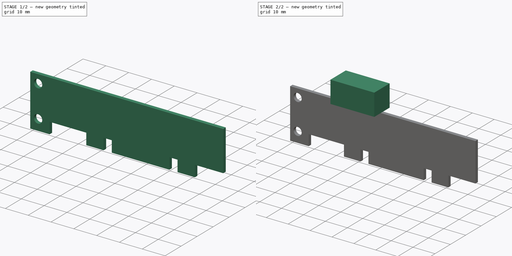
[diagram: build sequence overview — one tinted view per stage of 2, left to right]
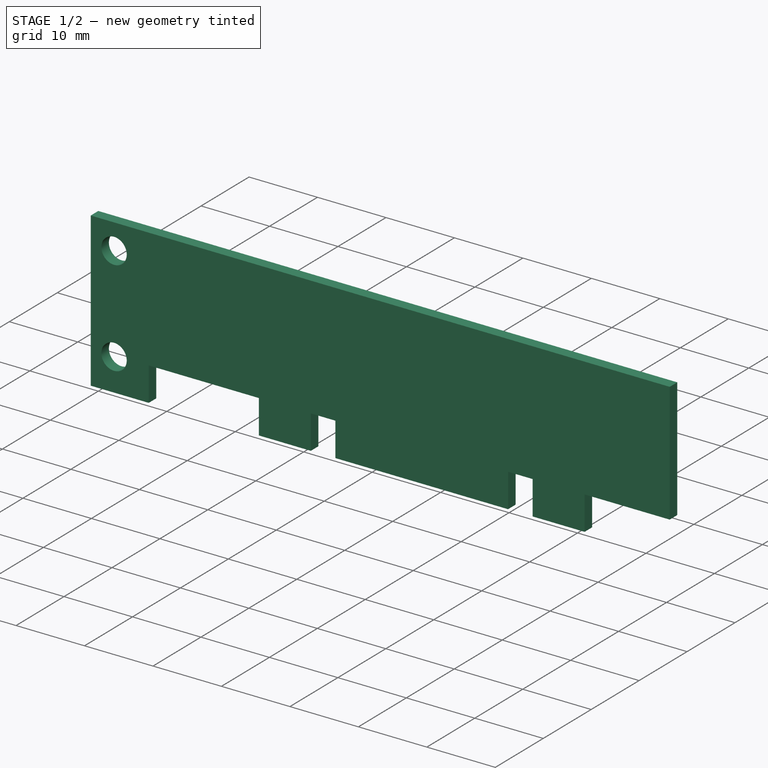
[diagram: stage 1 of 2 — iso view after this stage's code; geometry added in this stage tinted green]
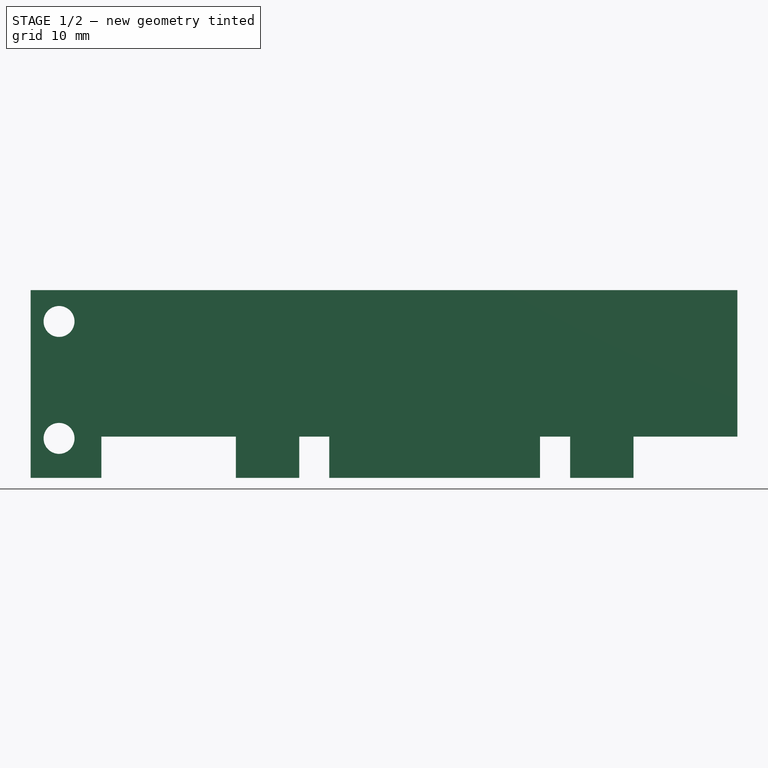
[diagram: stage 1 of 2 — front view after this stage's code; geometry added in this stage tinted green]
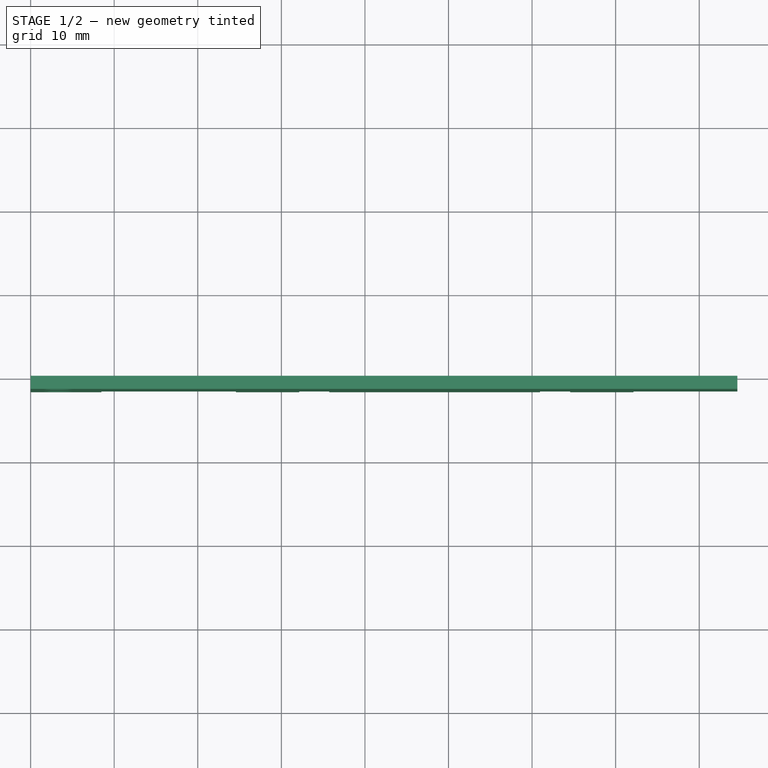
[diagram: stage 1 of 2 — top view after this stage's code; geometry added in this stage tinted green]
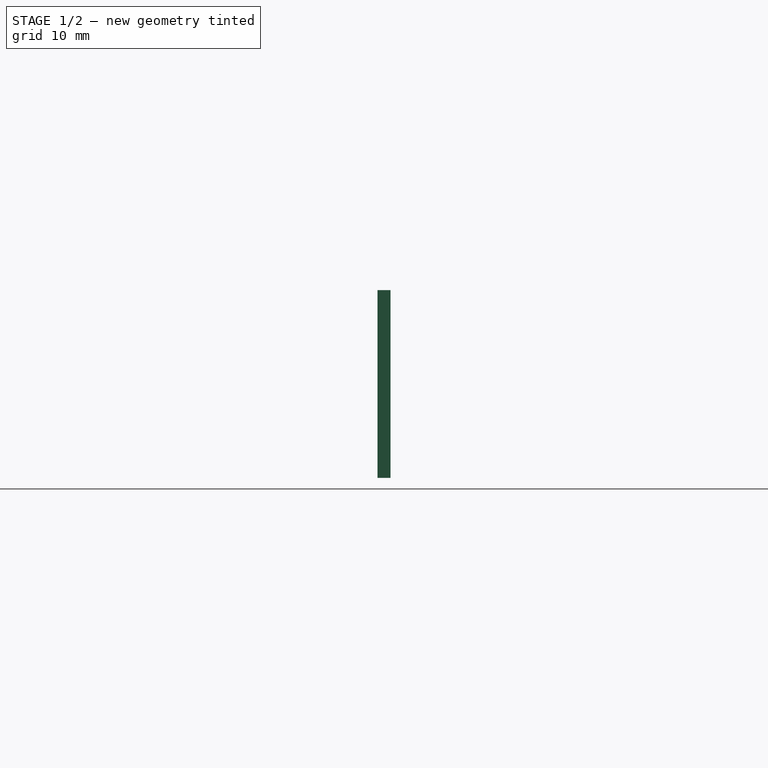
[diagram: stage 1 of 2 — right view after this stage's code; geometry added in this stage tinted green]
FCSTD DOCUMENT  (FreeCAD 0.20R)
Label: time-machine
License: All rights reserved
LicenseURL: http://en.wikipedia.org/wiki/All_rights_reserved
objects: PartDesign::Body×5, Sketcher::SketchObject×2, PartDesign::Pad×2
note: 11 computed .brp shape members not serialized (recipe doc carries the construction recipe); baked Part::Feature solids carry a one-line shape summary decoded from their .brp

FEATURE [Sketcher::SketchObject] Sketch
  FullyConstrained = false
  MapMode = 5
  Placement = pos=(0,0,0) rot=(1,0,0;1.5708rad)
  Support = -> [XZ_Plane001]
  sketch-geometry (21):
    g0: LineSegment StartX=0 StartY=0 StartZ=0 EndX=8.46819 EndY=0 EndZ=0
    g1: LineSegment StartX=8.46819 StartY=0 StartZ=0 EndX=8.46819 EndY=4.94097 EndZ=0
    g2: LineSegment StartX=8.46819 StartY=4.94097 StartZ=0 EndX=24.5582 EndY=4.94097 EndZ=0
    g3: LineSegment StartX=24.5582 StartY=4.94097 StartZ=0 EndX=24.5582 EndY=0 EndZ=0
    g4: LineSegment StartX=24.5582 StartY=0 StartZ=0 EndX=32.1467 EndY=0 EndZ=0
    g5: LineSegment StartX=32.1467 StartY=0 StartZ=0 EndX=32.1467 EndY=4.94097 EndZ=0
    g6: LineSegment StartX=32.1467 StartY=4.94097 StartZ=0 EndX=35.7394 EndY=4.94097 EndZ=0
    g7: LineSegment StartX=35.7394 StartY=4.94097 StartZ=0 EndX=35.7394 EndY=0 EndZ=0
    g8: LineSegment StartX=35.7394 StartY=0 StartZ=0 EndX=60.9553 EndY=0 EndZ=0
    g9: LineSegment StartX=60.9553 StartY=0 StartZ=0 EndX=60.9553 EndY=4.94097 EndZ=0
    g10: LineSegment StartX=60.9553 StartY=4.94097 StartZ=0 EndX=64.5479 EndY=4.94097 EndZ=0
    g11: LineSegment StartX=64.5479 StartY=4.94097 StartZ=0 EndX=64.5479 EndY=0 EndZ=0
    g12: LineSegment StartX=64.5479 StartY=0 StartZ=0 EndX=72.1364 EndY=0 EndZ=0
    g13: LineSegment StartX=72.1364 StartY=0 StartZ=0 EndX=72.1364 EndY=4.94097 EndZ=0
    g14: LineSegment StartX=72.1364 StartY=4.94097 StartZ=0 EndX=84.5658 EndY=4.94097 EndZ=0
    g15: LineSegment StartX=84.5658 StartY=4.94097 StartZ=0 EndX=84.5658 EndY=22.4693 EndZ=0
    g16: LineSegment StartX=84.5658 StartY=22.4693 StartZ=0 EndX=0 EndY=22.4693 EndZ=0
    g17: LineSegment StartX=0 StartY=22.4693 StartZ=0 EndX=0 EndY=0 EndZ=0
    g18: Circle CenterX=3.4028 CenterY=4.72649 CenterZ=0 NormalX=0 NormalY=0 NormalZ=1 AngleXU=0 Radius=1.85012
    g19: Circle CenterX=3.4028 CenterY=18.7179 CenterZ=0 NormalX=0 NormalY=0 NormalZ=1 AngleXU=0 Radius=1.85012
    g20: LineSegment StartX=3.4028 StartY=18.7179 StartZ=0 EndX=3.4028 EndY=4.72649 EndZ=0
  constraints (49):
    c: Coincident(g0,g-1)
    c: PointOnObject(g0,g-1)
    c: Coincident(g1,g0)
    c: Vertical(g1)
    c: Coincident(g2,g1)
    c: Horizontal(g2)
    c: Coincident(g3,g2)
    c: PointOnObject(g3,g-1)
    c: Vertical(g3)
    c: Coincident(g4,g3)
    c: PointOnObject(g4,g-1)
    c: Coincident(g5,g4)
    c: Vertical(g5)
    c: Coincident(g6,g5)
    c: Horizontal(g6)
    c: Coincident(g7,g6)
    c: PointOnObject(g7,g-1)
    c: Vertical(g7)
    c: Coincident(g8,g7)
    c: PointOnObject(g8,g-1)
    c: Coincident(g9,g8)
    c: Vertical(g9)
    c: Coincident(g10,g9)
    c: Horizontal(g10)
    c: Coincident(g11,g10)
    c: PointOnObject(g11,g-1)
    c: Vertical(g11)
    c: Coincident(g12,g11)
    c: PointOnObject(g12,g-1)
    c: Coincident(g13,g12)
    c: Vertical(g13)
    c: Coincident(g14,g13)
    c: Horizontal(g14)
    c: Coincident(g15,g14)
    c: Vertical(g15)
    c: Coincident(g16,g15)
    c: PointOnObject(g16,g-2)
    c: Horizontal(g16)
    c: Coincident(g17,g16)
    c: Coincident(g17,g0)
    c: Coincident(g20,g19)
    c: Coincident(g20,g18)
    c: Vertical(g20)
    c: Equal(g12,g4)
    c: Equal(g3,g5)
    c: Equal(g7,g9)
    c: Equal(g11,g13)
    c: Equal(g6,g10)
    c: Equal(g19,g18)
FEATURE [PartDesign::Pad] Pad
  Direction = (0,-1,2e-16)
  Length = 1.57
  Length2 = 10
  Placement = pos=(0,0,0) rot=(1,0,0;1.5708rad)
  Profile = -> Sketch
  ReferenceAxis = -> Sketch [N_Axis]
  Type = 0
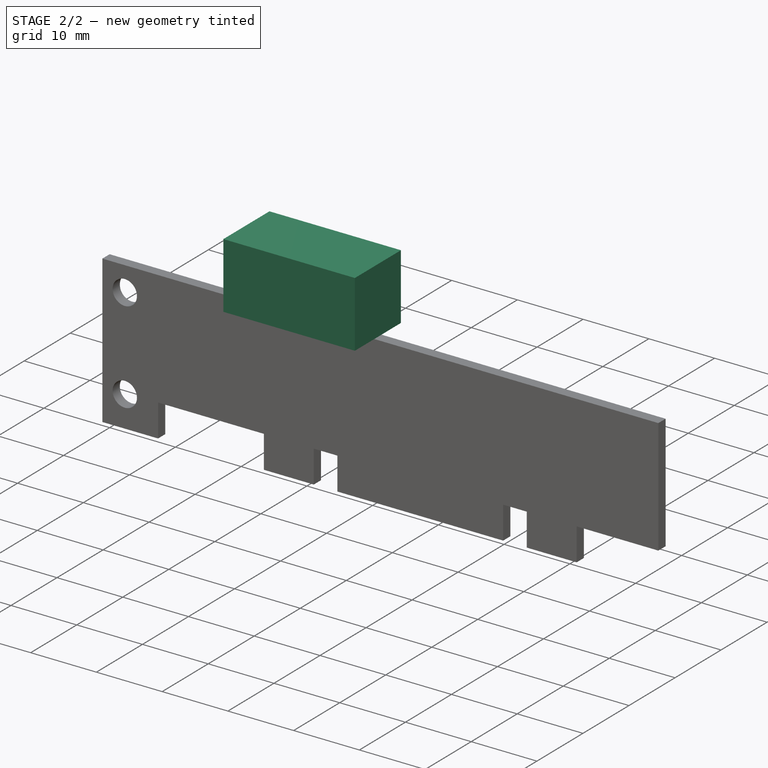
[diagram: stage 2 of 2 — iso view after this stage's code; geometry added in this stage tinted green]
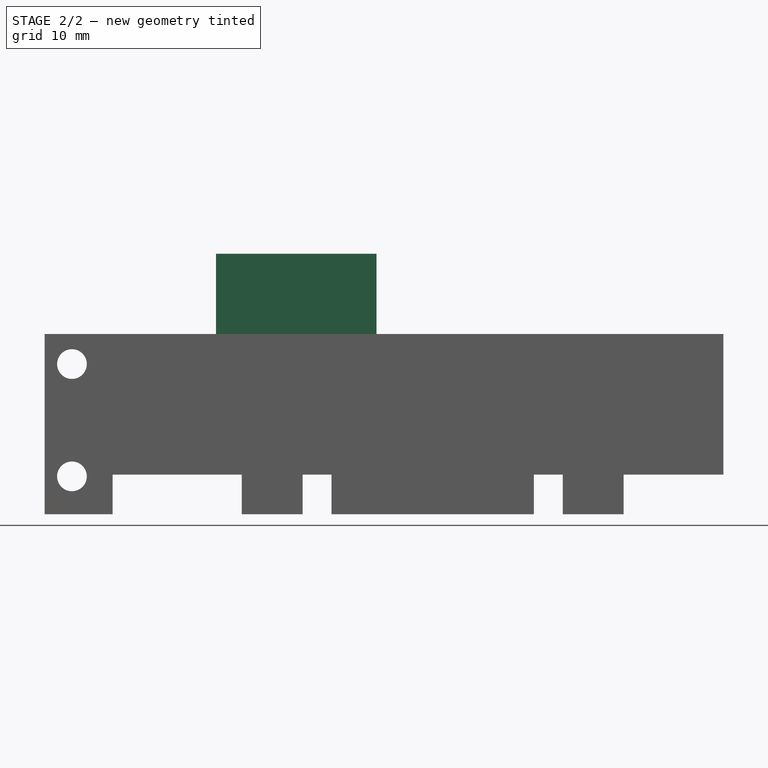
[diagram: stage 2 of 2 — front view after this stage's code; geometry added in this stage tinted green]
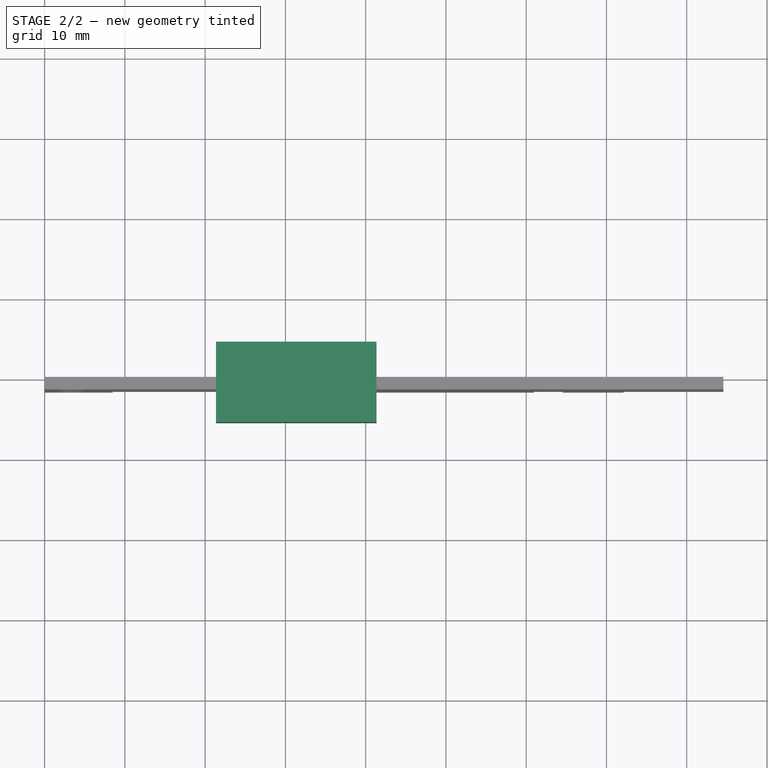
[diagram: stage 2 of 2 — top view after this stage's code; geometry added in this stage tinted green]
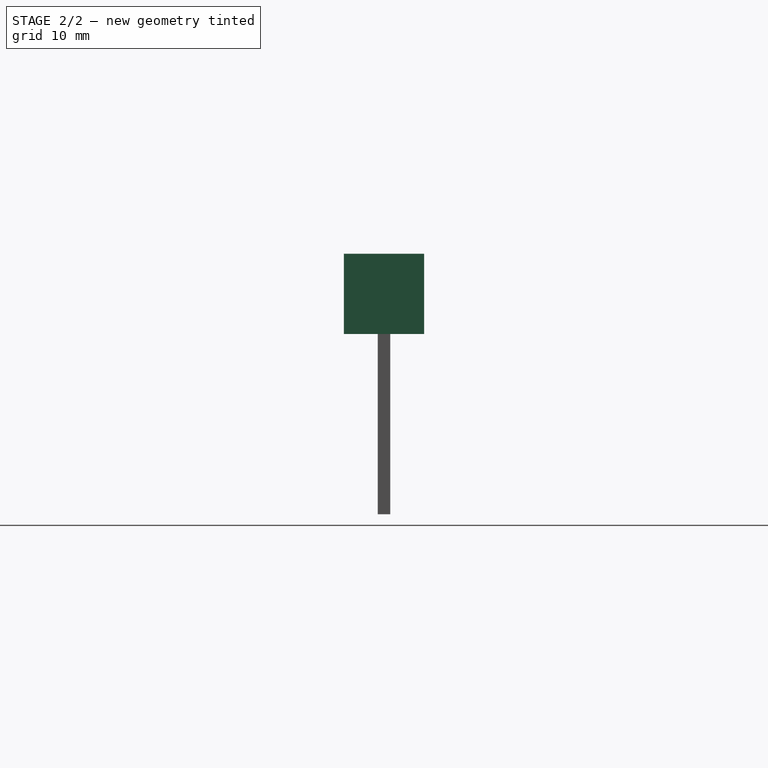
[diagram: stage 2 of 2 — right view after this stage's code; geometry added in this stage tinted green]
FEATURE [Sketcher::SketchObject] Sketch001
  AttachmentOffset = pos=(0,0,4.215) rot=(0,0,1;0rad)
  ExternalGeometry = -> [Pad]
  FullyConstrained = false
  MapMode = 5
  Placement = pos=(0,-5.785,1.3e-15) rot=(1,0,0;1.5708rad)
  Support = -> [Pad]
  sketch-geometry (4):
    g0: LineSegment StartX=21.3538 StartY=22.4693 StartZ=0 EndX=21.3538 EndY=32.4693 EndZ=0
    g1: LineSegment StartX=21.3538 StartY=32.4693 StartZ=0 EndX=41.3538 EndY=32.4693 EndZ=0
    g2: LineSegment StartX=41.3538 StartY=32.4693 StartZ=0 EndX=41.3538 EndY=22.4693 EndZ=0
    g3: LineSegment StartX=41.3538 StartY=22.4693 StartZ=0 EndX=21.3538 EndY=22.4693 EndZ=0
  constraints (11):
    c: PointOnObject(g0,g-3)
    c: Vertical(g0)
    c: Coincident(g1,g0)
    c: Horizontal(g1)
    c: Coincident(g2,g1)
    c: PointOnObject(g2,g-3)
    c: Vertical(g2)
    c: Coincident(g3,g2)
    c: Coincident(g3,g0)
    c: DistanceX(g1,g1) = 20
    c: DistanceY(g2,g2) = 10
FEATURE [PartDesign::Pad] Pad001
  BaseFeature = -> Pad
  Direction = (0,-1,2e-16)
  Length = 10
  Length2 = 10
  Placement = pos=(0,0,0) rot=(1,0,0;1.5708rad)
  Profile = -> Sketch001
  ReferenceAxis = -> Sketch001 [N_Axis]
  Reversed = true
  Type = 0
FEATURE [PartDesign::Body] Body001  label="PCI1PEX1"
  Group = -> [Sketch,Pad,Sketch001,Pad001]
  Origin = -> Origin001
  Tip = -> Pad001
FEATURE [PartDesign::Body] Body  label="TimeCard"
  Origin = -> Origin
FEATURE [PartDesign::Body] Body002  label="Bracket"
  Origin = -> Origin002
FEATURE [PartDesign::Body] Body003  label="Heatsink"
  Origin = -> Origin003
FEATURE [PartDesign::Body] Body004  label="X72"
  Origin = -> Origin004
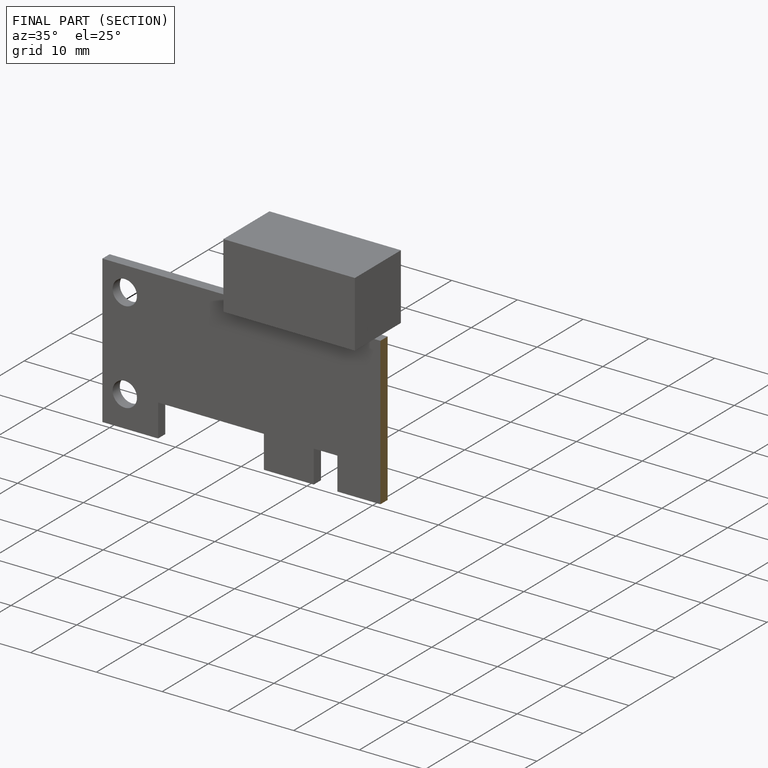
[diagram: finished part — half-section view (interior)]
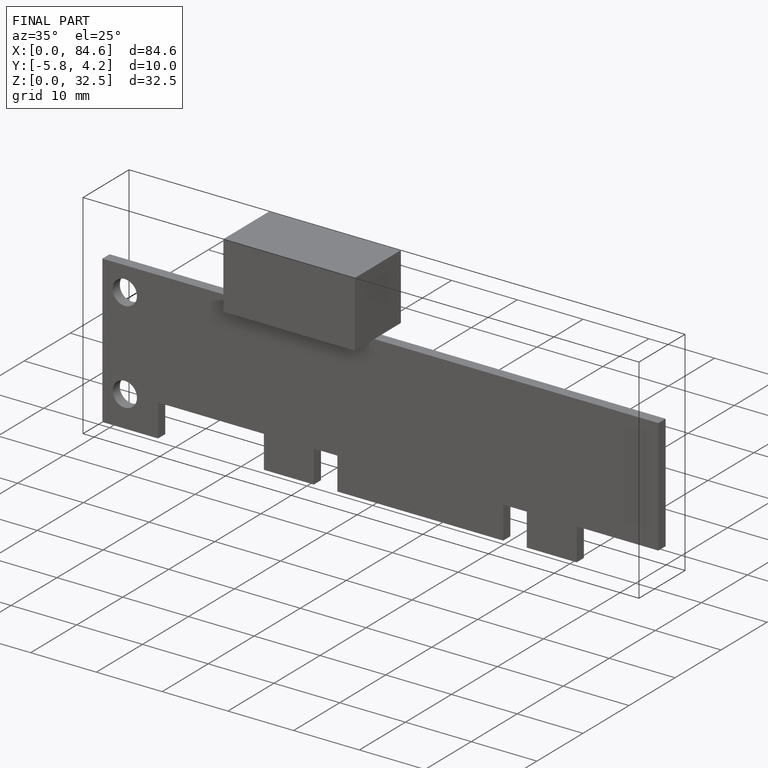
[diagram: finished part — iso view with bounding-box wireframe]
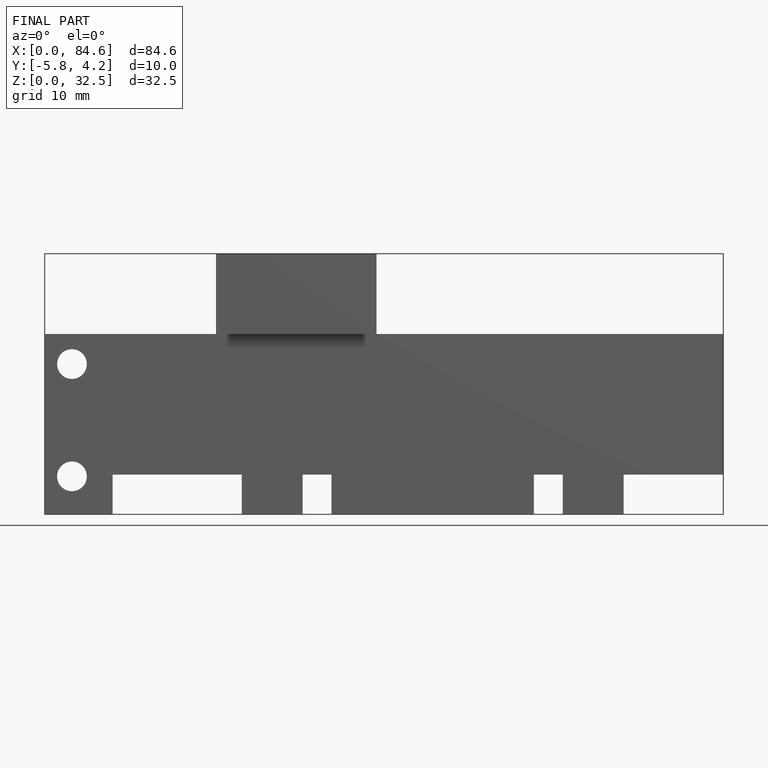
[diagram: finished part — front view with bounding-box wireframe]
